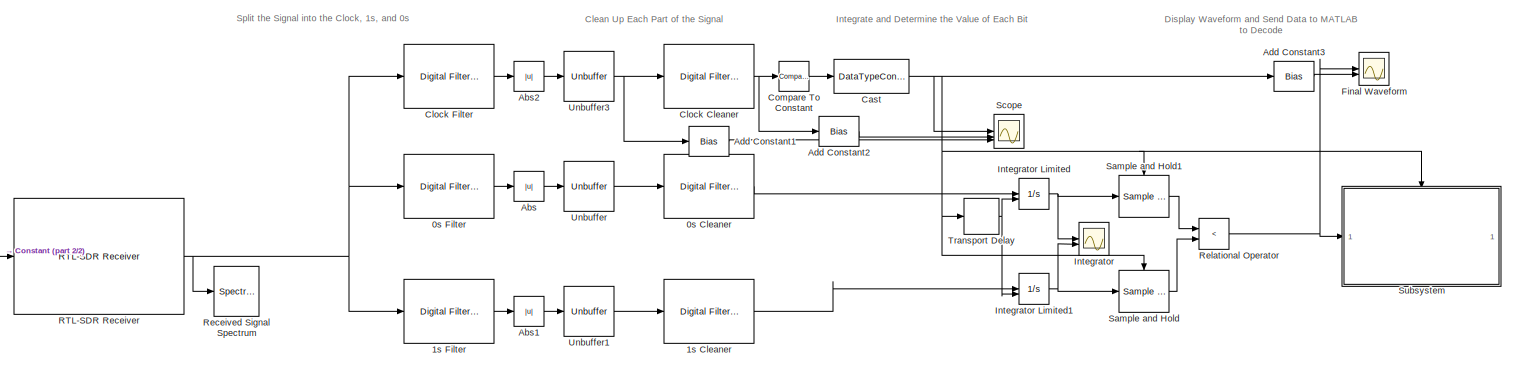
[diagram: root canvas - part 1/2, most of the canvas]
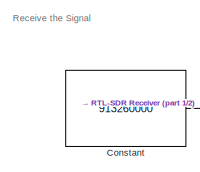
[diagram: root canvas - part 2/2, middle left region]
MODEL slx_2fd6773889cd
KIND model
CONFIG AbsTol = auto
CONFIG EnableMultiTasking = off
CONFIG FixedStep = auto
CONFIG MaxStep = auto
CONFIG MinStep = auto
CONFIG RelTol = 1e-3
CONFIG SampleTimeConstraint = Unconstrained
CONFIG SolverName = VariableStepAuto
CONFIG StartTime = 0.0
CONFIG StopTime = inf
BLOCK [Reference] 0s Cleaner  REF=dspfdesign/Digital
Filter Design
  SourceBlock = dspfdesign/Digital\nFilter Design
  SourceType = Digital Filter Design
  UserDataPersistent = on
BLOCK [Reference] 0s Filter  REF=dspfdesign/Digital
Filter Design
  SourceBlock = dspfdesign/Digital\nFilter Design
  SourceType = Digital Filter Design
  UserDataPersistent = on
BLOCK [Reference] 1s Cleaner  REF=dspfdesign/Digital
Filter Design
  SourceBlock = dspfdesign/Digital\nFilter Design
  SourceType = Digital Filter Design
  UserDataPersistent = on
BLOCK [Reference] 1s Filter  REF=dspfdesign/Digital
Filter Design
  SourceBlock = dspfdesign/Digital\nFilter Design
  SourceType = Digital Filter Design
  UserDataPersistent = on
BLOCK [Abs] Abs
  SaturateOnIntegerOverflow = off
BLOCK [Abs] Abs1
  SaturateOnIntegerOverflow = off
BLOCK [Abs] Abs2
  SaturateOnIntegerOverflow = off
BLOCK [Bias] Add Constant1
  Bias = 4
  SaturateOnIntegerOverflow = off
BLOCK [Bias] Add Constant2
  Bias = 2
  SaturateOnIntegerOverflow = off
BLOCK [Bias] Add Constant3
  Bias = 1.5
  SaturateOnIntegerOverflow = off
BLOCK [DataTypeConversion] Cast
  OutDataTypeStr = double
  RndMeth = Floor
  SaturateOnIntegerOverflow = off
BLOCK [Reference] Clock Cleaner  REF=dspfdesign/Digital
Filter Design
  SourceBlock = dspfdesign/Digital\nFilter Design
  SourceType = Digital Filter Design
  UserDataPersistent = on
BLOCK [Reference] Clock Filter  REF=dspfdesign/Digital
Filter Design
  SourceBlock = dspfdesign/Digital\nFilter Design
  SourceType = Digital Filter Design
  UserDataPersistent = on
BLOCK [Reference] Compare To Constant  REF=simulink/Logic and Bit
Operations/Compare
To Constant
  SourceBlock = simulink/Logic and Bit\nOperations/Compare\nTo Constant
  SourceType = Compare To Constant
BLOCK [Constant] Constant
  Value = 913260000
BLOCK [Scope] Final Waveform
  Floating = off
  NumInputPorts = 2
  ScopeSpecificationString = Simulink.scopes.TimeScopeBlockCfg('CurrentConfiguration', extmgr.ConfigurationSet(extmgr.Configuration('Core','General UI',true),extmgr.Configuration('Core','Source UI',true),extmgr.Configuration('Sources','WiredSimulink',true,'DataLoggingVariableName','ScopeData1'),extmgr.Configuration('Visuals','Time Domain',true,'SerializedDisplays',{struct('MinYLimReal','-0.3125','MaxYLimReal','2.8125','YLabel...<+1583ch>
BLOCK [Scope] Integrator
  Floating = off
  NumInputPorts = 2
  ScopeSpecificationString = Simulink.scopes.TimeScopeBlockCfg('CurrentConfiguration', extmgr.ConfigurationSet(extmgr.Configuration('Core','General UI',true),extmgr.Configuration('Core','Source UI',true),extmgr.Configuration('Sources','WiredSimulink',true,'DataLoggingVariableName','ScopeData2'),extmgr.Configuration('Visuals','Time Domain',true,'SerializedDisplays',{struct('MinYLimReal','-0.02366','MaxYLimReal','0.17588','YLab...<+1588ch>
BLOCK [Integrator] Integrator Limited
  ExternalReset = either
  LowerSaturationLimit = 0
  UpperSaturationLimit = 1
BLOCK [Integrator] Integrator Limited1
  ExternalReset = either
  LowerSaturationLimit = 0
  UpperSaturationLimit = 1
BLOCK [Reference] RTL-SDR Receiver  REF=sdrrlib/RTL-SDR
Receiver
  SourceBlock = sdrrlib/RTL-SDR\nReceiver
  SourceType = RTL-SDR Receiver
BLOCK [SpectrumAnalyzer] Received Signal Spectrum
  GraphicalSettings = {"GraphicalSettings":{"Style":{"BackgroundColor":[0.12941176470588237,0.12941176470588237,0.12941176470588237],"AxesColor":[0.07058823529411765,0.07058823529411765,0.07058823529411765],"LabelsColor":[0.8509803921568627,0.8509803921568627,0.8509803921568627],"PreserveColors":false,"Visible":[true],"LineStyle":["-"],"LineWidth":[1.5],"BarWidth":[0.9],"LineColor":[[1,0.9098039215686274,0.392156862745...<+999ch>
  ScopeFrameLocation = window
  Span = 300000
  StartFrequency = -150000
  StopFrequency = 150000
  WasSavedAsWebScope = on
  WindowInvariantSamplesPerUpdate = on
  WindowPosition = [8.000000,40.000000,1520.000000,784.000000,]
  YLimits = [-44.63934948,14.13153474]
BLOCK [RelationalOperator] Relational Operator
  InputSameDT = off
  Operator = <
  OutDataTypeStr = boolean
  RndMeth = Simplest
BLOCK [Reference] Sample and Hold  REF=dspsigops/Sample
and Hold
  LibrarySourceBlock = dsphdlsupportsigops/Sample\nand Hold
  SourceBlock = dspsigops/Sample\nand Hold
  SourceType = Sample and Hold
BLOCK [Reference] Sample and Hold1  REF=dspsigops/Sample
and Hold
  LibrarySourceBlock = dsphdlsupportsigops/Sample\nand Hold
  SourceBlock = dspsigops/Sample\nand Hold
  SourceType = Sample and Hold
BLOCK [Scope] Scope
  Floating = off
  NumInputPorts = 3
  ScopeSpecificationString = Simulink.scopes.TimeScopeBlockCfg('CurrentConfiguration', extmgr.ConfigurationSet(extmgr.Configuration('Core','General UI',true),extmgr.Configuration('Core','Source UI',true),extmgr.Configuration('Sources','WiredSimulink',true,'DataLoggingVariableName','ScopeData1'),extmgr.Configuration('Visuals','Time Domain',true,'SerializedDisplays',{struct('MinYLimReal','-0.61989','MaxYLimReal','5.579','YLabel...<+1505ch>
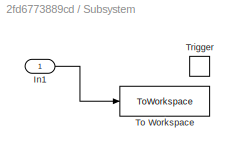
BLOCK [SubSystem] Subsystem
BLOCK [Inport] Subsystem/In1
BLOCK [ToWorkspace] Subsystem/To Workspace
  FixptAsFi = on
  MaxDataPoints = inf
  SampleTime = -1
  VariableName = signalOut
BLOCK [TriggerPort] Subsystem/Trigger
  PortDimensions = 1
  StatesWhenEnabling = held
  TriggerType = either
  VariantControl = (inherit)
BLOCK [TransportDelay] Transport Delay
  DelayTime = 1e-6
BLOCK [Unbuffer] Unbuffer
BLOCK [Unbuffer] Unbuffer1
BLOCK [Unbuffer] Unbuffer3
ANNOTATION (root): Clean Up Each Part of the Signal
ANNOTATION (root): Display Waveform and Send Data to MATLAB to Decode
ANNOTATION (root): Integrate and Determine the Value of Each Bit
ANNOTATION (root): Receive the Signal
ANNOTATION (root): Split the Signal into the Clock, 1s, and 0s
LINE 0s Cleaner:1 -> Integrator Limited:1
LINE 0s Filter:1 -> Abs:1
LINE 1s Cleaner:1 -> Integrator Limited1:1
LINE 1s Filter:1 -> Abs1:1
LINE Abs1:1 -> Unbuffer1:1
LINE Abs2:1 -> Unbuffer3:1
LINE Abs:1 -> Unbuffer:1
LINE Add Constant1:1 -> Scope:3
LINE Add Constant2:1 -> Scope:2
LINE Add Constant3:1 -> Final Waveform:2
NET Cast:1 -> Add Constant3:1, Sample and Hold1:trigger, Sample and Hold:trigger, Scope:1, Subsystem:trigger, Transport Delay:1
NET Clock Cleaner:1 -> Add Constant2:1, Compare To Constant:1
LINE Clock Filter:1 -> Abs2:1
LINE Compare To Constant:1 -> Cast:1
LINE Constant:1 -> RTL-SDR Receiver:1
NET Integrator Limited1:1 -> Integrator:2, Sample and Hold:1
NET Integrator Limited:1 -> Integrator:1, Sample and Hold1:1
NET RTL-SDR Receiver:1 -> 0s Filter:1, 1s Filter:1, Clock Filter:1, Received Signal Spectrum:1
NET Relational Operator:1 -> Final Waveform:1, Subsystem:1
LINE Sample and Hold1:1 -> Relational Operator:1
LINE Sample and Hold:1 -> Relational Operator:2
LINE Subsystem/In1:1 -> Subsystem/To Workspace:1
NET Transport Delay:1 -> Integrator Limited1:2, Integrator Limited:2
LINE Unbuffer1:1 -> 1s Cleaner:1
NET Unbuffer3:1 -> Add Constant1:1, Clock Cleaner:1
LINE Unbuffer:1 -> 0s Cleaner:1
note: NET lines group one-source signal fan-out (src -> all destinations, sorted); 1:1 wires keep LINE
